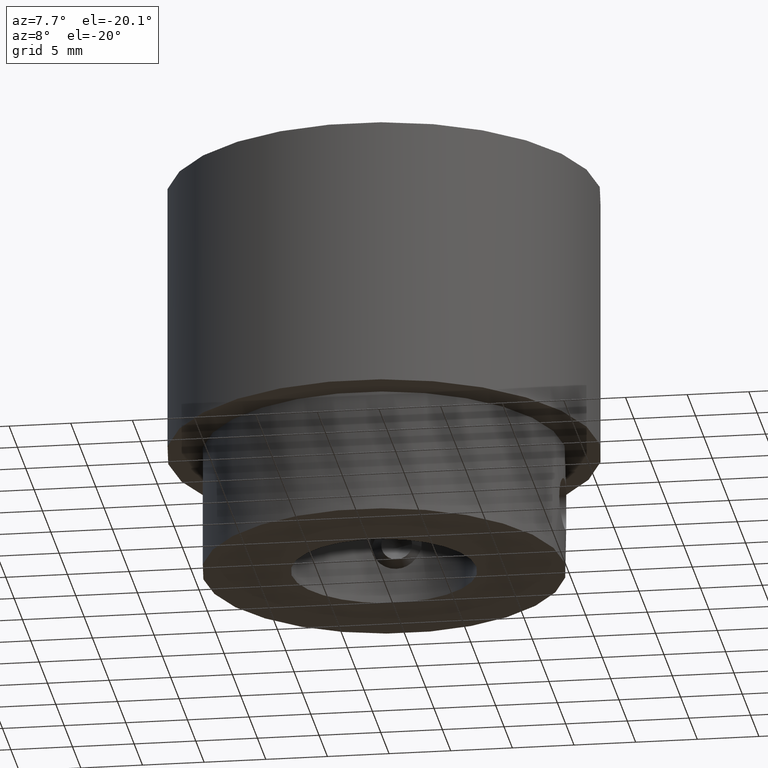
[diagram: clean part render]
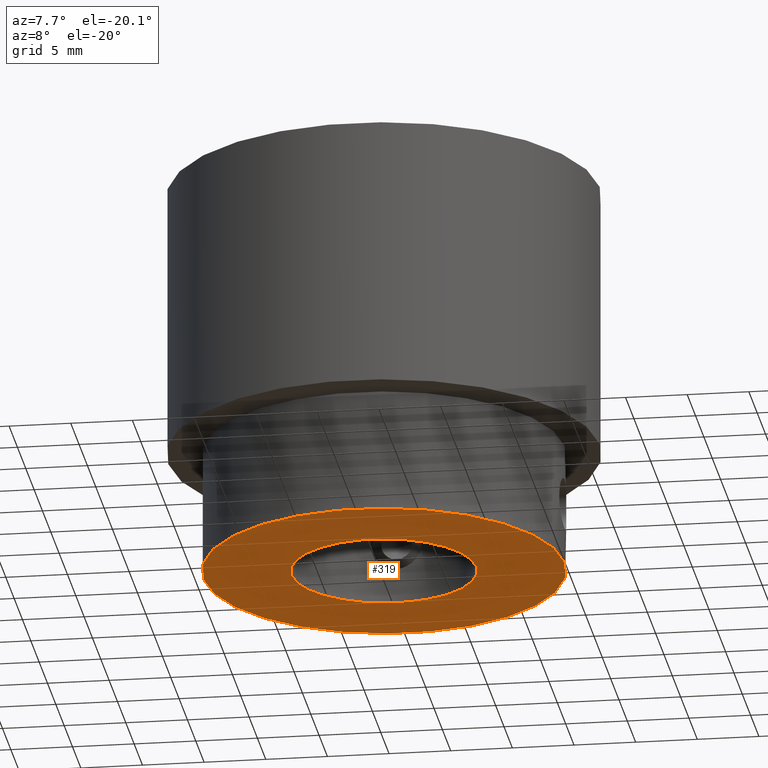
[diagram: same view with one face highlighted and labeled with its STEP entity id]
A machine part, auxiliary view. The second image highlights one B-rep face of the part: STEP entity #319.
In plain terms, the highlighted planar face has unit normal (0, 0, 1).
Its self-contained STEP definition (entity closure, byte-faithful):
#319 = ADVANCED_FACE( '', ( #376, #377 ), #378, .F. );
#376 = FACE_OUTER_BOUND( '', #469, .T. );
#377 = FACE_BOUND( '', #470, .T. );
#378 = PLANE( '', #471 );
#469 = EDGE_LOOP( '', ( #571 ) );
#470 = EDGE_LOOP( '', ( #572 ) );
#471 = AXIS2_PLACEMENT_3D( '', #573, #574, #575 );
#571 = ORIENTED_EDGE( '', *, *, #759, .F. );
#572 = ORIENTED_EDGE( '', *, *, #763, .T. );
#573 = CARTESIAN_POINT( '', ( 0.000000000000000, 0.000000000000000, -32.0000000000000 ) );
#574 = DIRECTION( '', ( 0.000000000000000, 0.000000000000000, 1.00000000000000 ) );
#575 = DIRECTION( '', ( 1.00000000000000, 0.000000000000000, 0.000000000000000 ) );
#759 = EDGE_CURVE( '', #818, #818, #819, .T. );
#763 = EDGE_CURVE( '', #826, #826, #827, .T. );
#818 = VERTEX_POINT( '', #973 );
#819 = CIRCLE( '', #974, 14.6500000000000 );
#826 = VERTEX_POINT( '', #1093 );
#827 = CIRCLE( '', #1094, 7.50000000000000 );
#973 = CARTESIAN_POINT( '', ( 14.6500000000000, 0.000000000000000, -32.0000000000000 ) );
#974 = AXIS2_PLACEMENT_3D( '', #1324, #1325, #1326 );
#1093 = CARTESIAN_POINT( '', ( 7.50000000000000, 0.000000000000000, -32.0000000000000 ) );
#1094 = AXIS2_PLACEMENT_3D( '', #1330, #1331, #1332 );
#1324 = CARTESIAN_POINT( '', ( 0.000000000000000, 0.000000000000000, -32.0000000000000 ) );
#1325 = DIRECTION( '', ( 0.000000000000000, 0.000000000000000, 1.00000000000000 ) );
#1326 = DIRECTION( '', ( 1.00000000000000, 0.000000000000000, -0.000000000000000 ) );
#1330 = CARTESIAN_POINT( '', ( 0.000000000000000, 0.000000000000000, -32.0000000000000 ) );
#1331 = DIRECTION( '', ( 0.000000000000000, 0.000000000000000, 1.00000000000000 ) );
#1332 = DIRECTION( '', ( 1.00000000000000, 0.000000000000000, 0.000000000000000 ) );